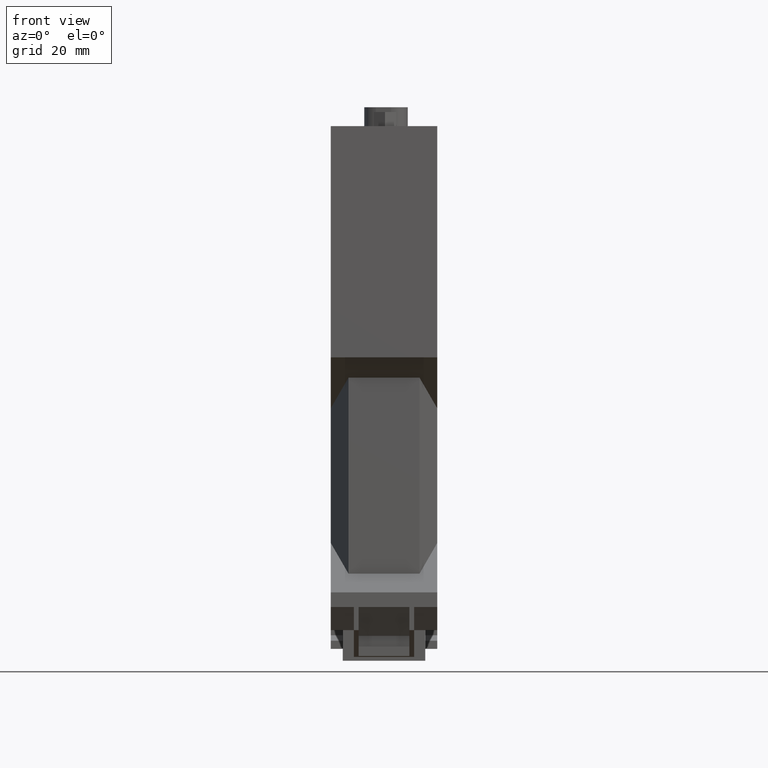
[diagram: clean part render]
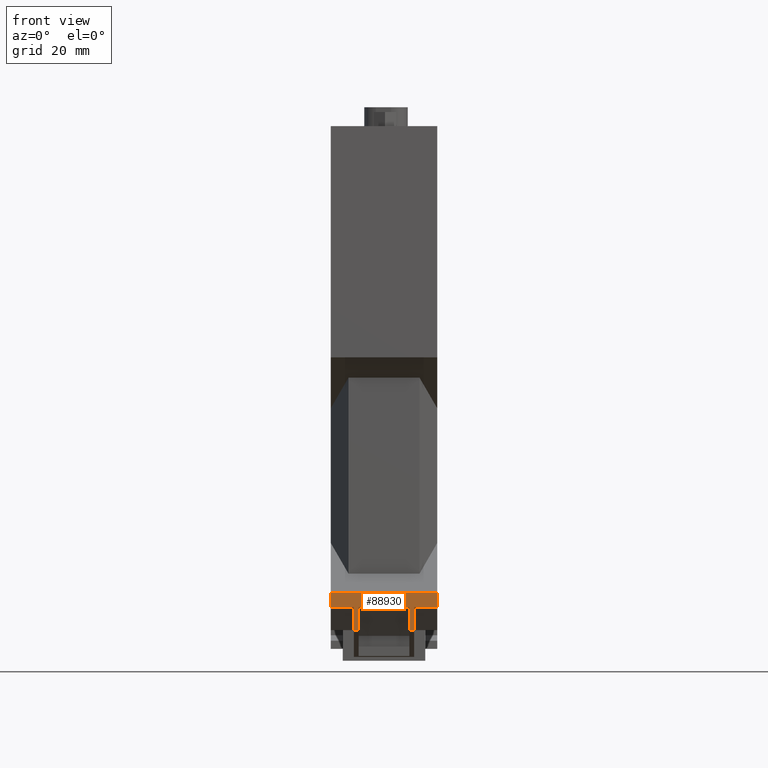
[diagram: same view with one face highlighted and labeled with its STEP entity id]
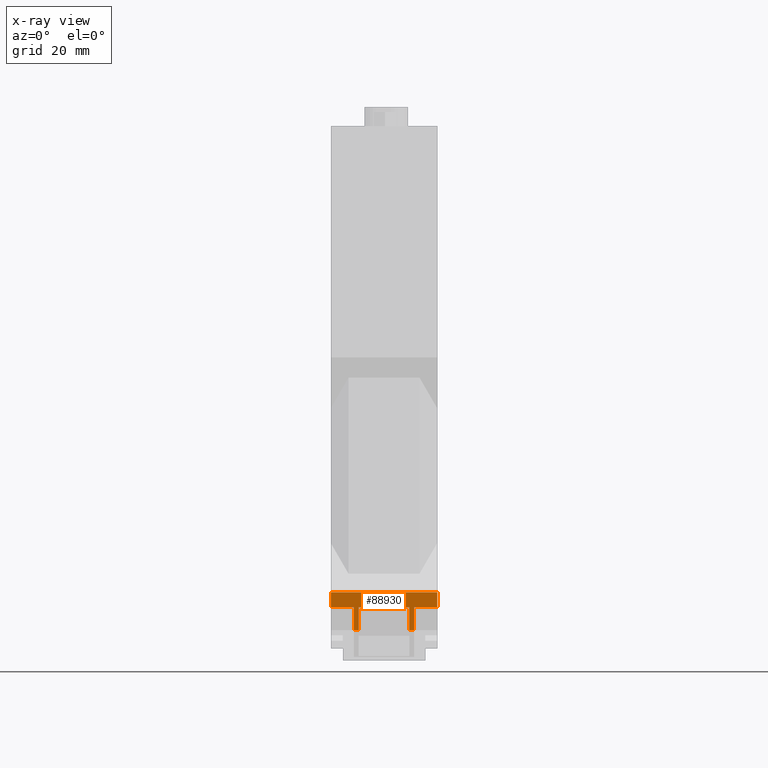
[diagram: x-ray of the same camera — body ghosted, the highlighted face saturated]
A machine part, front view. The second image highlights one B-rep face of the part: STEP entity #88930.
The next image is the same camera in x-ray: the body ghosted, the highlighted face saturated — about 0% of this face is hidden behind the body in this view.
In plain terms, the highlighted planar face has unit normal (0, -1, 0).
Its self-contained STEP definition (entity closure, byte-faithful):
#1640=CARTESIAN_POINT('',(-64.0500000000063,7.99999999999596,0.));
#1650=VERTEX_POINT('',#1640);
#1680=CARTESIAN_POINT('',(-64.0500000000063,24.,0.));
#1690=DIRECTION('',(0.,-1.,0.));
#1700=VECTOR('',#1690,1.);
#1710=LINE('',#1680,#1700);
#1720=CARTESIAN_POINT('',(-64.0500000000063,4.90000000001316,0.));
#1730=VERTEX_POINT('',#1720);
#1740=EDGE_CURVE('',#1650,#1730,#1710,.T.);
#2030=CARTESIAN_POINT('',(-64.0500000000063,4.90000000001588,22.6));
#2040=VERTEX_POINT('',#2030);
#2070=CARTESIAN_POINT('',(-64.0500000000063,24.,22.6));
#2080=DIRECTION('',(0.,1.,0.));
#2090=VECTOR('',#2080,1.);
#2100=LINE('',#2070,#2090);
#2110=CARTESIAN_POINT('',(-64.0500000000063,7.99999999999596,22.6));
#2120=VERTEX_POINT('',#2110);
#2130=EDGE_CURVE('',#2040,#2120,#2100,.T.);
#5410=CARTESIAN_POINT('',(-64.0500000000063,4.90000000001318,0.));
#5420=DIRECTION('',(0.,0.,-1.));
#5430=VECTOR('',#5420,1.);
#5440=LINE('',#5410,#5430);
#5450=CARTESIAN_POINT('',(-64.0500000000063,4.90000000001315,4.9));
#5460=VERTEX_POINT('',#5450);
#5470=EDGE_CURVE('',#5460,#1730,#5440,.T.);
#6340=CARTESIAN_POINT('',(-64.0500000000063,24.,4.9));
#6350=DIRECTION('',(0.,-1.,0.));
#6360=VECTOR('',#6350,1.);
#6370=LINE('',#6340,#6360);
#6380=CARTESIAN_POINT('',(-64.0500000000063,-7.105427357601E-14,4.9));
#6390=VERTEX_POINT('',#6380);
#6400=EDGE_CURVE('',#5460,#6390,#6370,.T.);
#87560=CARTESIAN_POINT('',(-64.0500000000063,-7.105427357601E-14,16.7));
#87570=VERTEX_POINT('',#87560);
#87600=CARTESIAN_POINT('',(-64.0500000000063,-6.75015598972095E-14,0.));
#87610=DIRECTION('',(0.,0.,1.));
#87620=VECTOR('',#87610,1.);
#87630=LINE('',#87600,#87620);
#87640=CARTESIAN_POINT('',(-64.0500000000063,-7.105427357601E-14,17.7));
#87650=VERTEX_POINT('',#87640);
#87660=EDGE_CURVE('',#87570,#87650,#87630,.T.);
#87760=CARTESIAN_POINT('',(-64.0500000000063,-6.75015598972095E-14,0.));
#87770=DIRECTION('',(0.,0.,1.));
#87780=VECTOR('',#87770,1.);
#87790=LINE('',#87760,#87780);
#87800=CARTESIAN_POINT('',(-64.0500000000063,-7.105427357601E-14,5.9));
#87810=VERTEX_POINT('',#87800);
#87820=EDGE_CURVE('',#6390,#87810,#87790,.T.);
#88110=CARTESIAN_POINT('',(-64.0500000000063,4.90983993673296,5.9));
#88120=VERTEX_POINT('',#88110);
#88150=CARTESIAN_POINT('',(-64.0500000000063,4.90983993673297,0.));
#88160=DIRECTION('',(0.,0.,-1.));
#88170=VECTOR('',#88160,1.);
#88180=LINE('',#88150,#88170);
#88190=CARTESIAN_POINT('',(-64.0500000000063,4.90983993673296,16.7));
#88200=VERTEX_POINT('',#88190);
#88210=EDGE_CURVE('',#88200,#88120,#88180,.T.);
#88470=CARTESIAN_POINT('',(-64.0500000000063,-8.00000000000051,
6.89999999999997));
#88480=DIRECTION('',(-1.,0.,0.));
#88490=DIRECTION('',(0.,1.,0.));
#88500=AXIS2_PLACEMENT_3D('',#88470,#88480,#88490);
#88510=PLANE('',#88500);
#88520=CARTESIAN_POINT('',(-64.0500000000063,4.9000000000159,0.));
#88530=DIRECTION('',(0.,0.,-1.));
#88540=VECTOR('',#88530,1.);
#88550=LINE('',#88520,#88540);
#88560=CARTESIAN_POINT('',(-64.0500000000063,4.90000000001588,17.7));
#88570=VERTEX_POINT('',#88560);
#88580=EDGE_CURVE('',#2040,#88570,#88550,.T.);
#88590=ORIENTED_EDGE('',*,*,#88580,.F.);
#88600=CARTESIAN_POINT('',(-64.0500000000063,24.,17.7));
#88610=DIRECTION('',(0.,1.,0.));
#88620=VECTOR('',#88610,1.);
#88630=LINE('',#88600,#88620);
#88640=EDGE_CURVE('',#87650,#88570,#88630,.T.);
#88650=ORIENTED_EDGE('',*,*,#88640,.T.);
#88660=ORIENTED_EDGE('',*,*,#87660,.T.);
#88670=CARTESIAN_POINT('',(-64.0500000000063,24.,16.7));
#88680=DIRECTION('',(0.,-1.,0.));
#88690=VECTOR('',#88680,1.);
#88700=LINE('',#88670,#88690);
#88710=EDGE_CURVE('',#88200,#87570,#88700,.T.);
#88720=ORIENTED_EDGE('',*,*,#88710,.T.);
#88730=ORIENTED_EDGE('',*,*,#88210,.F.);
#88740=CARTESIAN_POINT('',(-64.0500000000063,24.,5.9));
#88750=DIRECTION('',(0.,1.,0.));
#88760=VECTOR('',#88750,1.);
#88770=LINE('',#88740,#88760);
#88780=EDGE_CURVE('',#87810,#88120,#88770,.T.);
#88790=ORIENTED_EDGE('',*,*,#88780,.T.);
#88800=ORIENTED_EDGE('',*,*,#87820,.T.);
#88810=ORIENTED_EDGE('',*,*,#6400,.T.);
#88820=ORIENTED_EDGE('',*,*,#5470,.F.);
#88830=ORIENTED_EDGE('',*,*,#1740,.T.);
#88840=CARTESIAN_POINT('',(-64.0500000000063,7.99999999999597,0.));
#88850=DIRECTION('',(0.,0.,1.));
#88860=VECTOR('',#88850,1.);
#88870=LINE('',#88840,#88860);
#88880=EDGE_CURVE('',#1650,#2120,#88870,.T.);
#88890=ORIENTED_EDGE('',*,*,#88880,.F.);
#88900=ORIENTED_EDGE('',*,*,#2130,.T.);
#88910=EDGE_LOOP('',(#88900,#88890,#88830,#88820,#88810,#88800,#88790,
#88730,#88720,#88660,#88650,#88590));
#88920=FACE_OUTER_BOUND('',#88910,.T.);
#88930=ADVANCED_FACE('',(#88920),#88510,.T.);